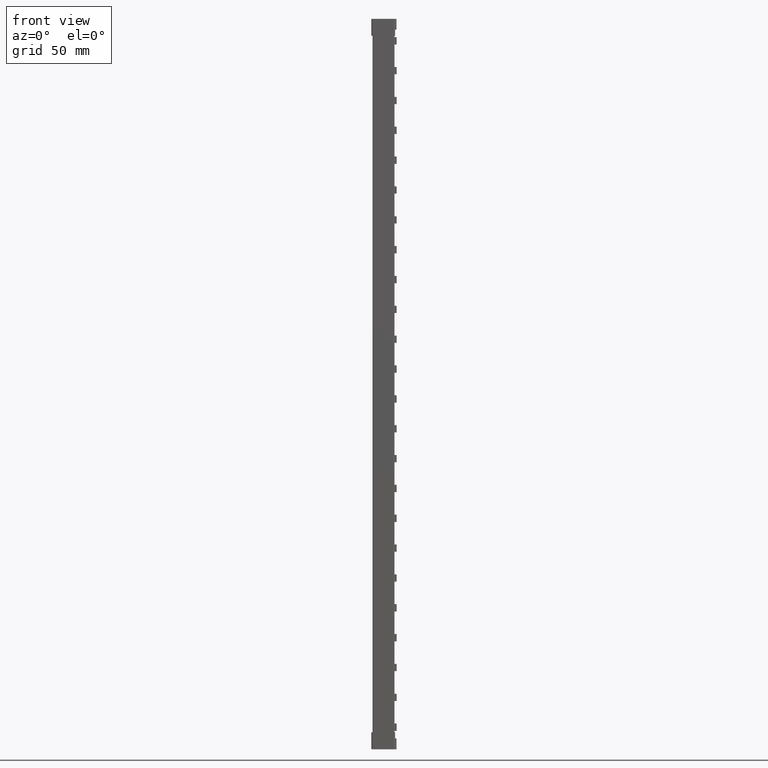
[diagram: clean part render]
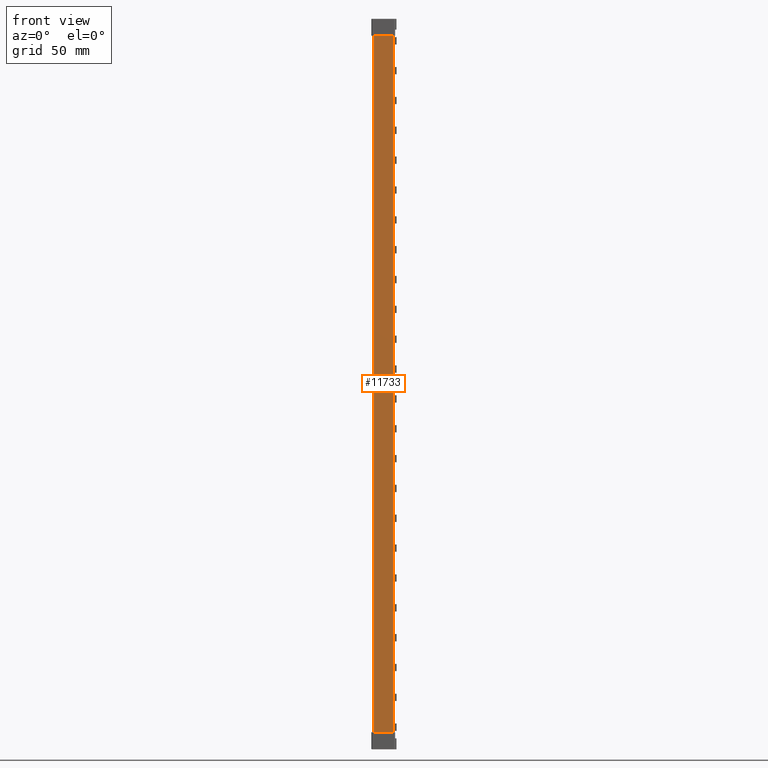
[diagram: same view with one face highlighted and labeled with its STEP entity id]
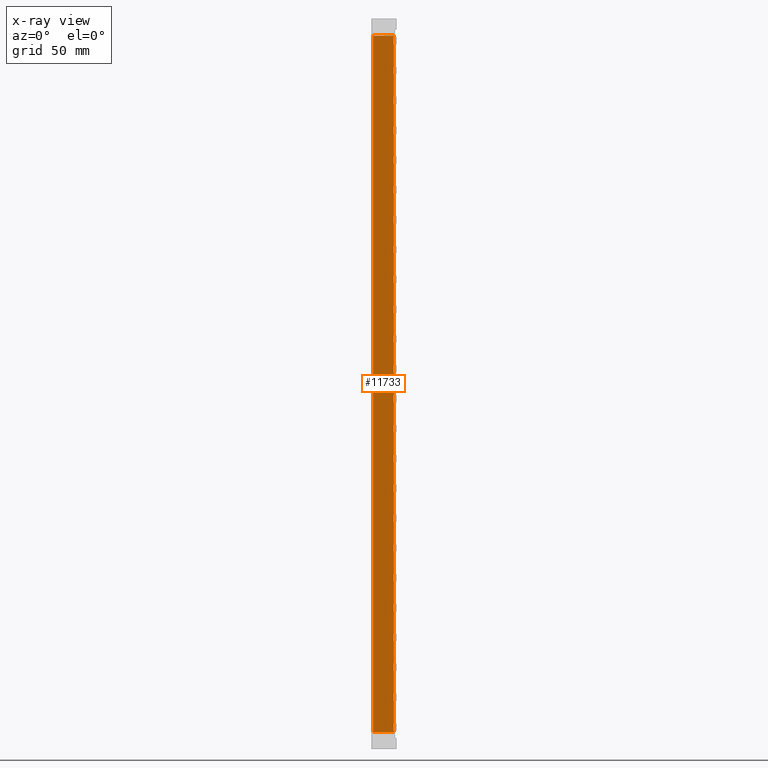
[diagram: x-ray of the same camera — body ghosted, the highlighted face saturated]
A machine part, front view. The second image highlights one B-rep face of the part: STEP entity #11733.
The next image is the same camera in x-ray: the body ghosted, the highlighted face saturated — about 0% of this face is hidden behind the body in this view.
In plain terms, the highlighted planar face has unit normal (-0, 1, 0).
Its self-contained STEP definition (entity closure, byte-faithful):
#1106 = CARTESIAN_POINT ( 'NONE',  ( 11.80192812978782700, 1.341396428036907800E-007, -200.9000000000002900 ) ) ;
#1111 = CARTESIAN_POINT ( 'NONE',  ( 11.80192812893712300, 1.341396426118437200E-007, 209.9000000000000100 ) ) ;
#1141 = CARTESIAN_POINT ( 'NONE',  ( 1.775923731161824000E-010, 5.640239996927491700E-014, 209.9000000000000100 ) ) ;
#1250 = CARTESIAN_POINT ( 'NONE',  ( 3.551845538125519700E-009, 5.558089477962050900E-014, -200.9000000000001500 ) ) ;
#11395 = EDGE_CURVE ( 'NONE', #30958, #30922, #14429, .T. ) ;
#11417 = EDGE_CURVE ( 'NONE', #30883, #30958, #14487, .T. ) ;
#11418 = EDGE_CURVE ( 'NONE', #30922, #30866, #14475, .T. ) ;
#11486 = EDGE_CURVE ( 'NONE', #30866, #30883, #14573, .T. ) ;
#11733 = ADVANCED_FACE ( 'NONE', ( #15071 ), #15076, .F. ) ;
#14407 = DIRECTION ( 'NONE',  ( 0.0000000000000000000, 0.0000000000000000000, 1.000000000000000000 ) ) ;
#14429 = LINE ( 'NONE', #14455, #29974 ) ;
#14455 = CARTESIAN_POINT ( 'NONE',  ( 1.420738259131353100E-009, 5.552729920643999400E-014, 219.0000000000000000 ) ) ;
#14471 = DIRECTION ( 'NONE',  ( -0.9999999999999998900, -1.136590436583420100E-008, 0.0000000000000000000 ) ) ;
#14472 = CARTESIAN_POINT ( 'NONE',  ( 0.0000000000000000000, 5.551115123125782700E-014, 209.9000000000000100 ) ) ;
#14473 = DIRECTION ( 'NONE',  ( 0.9999999999999998900, 1.136590436583420100E-008, -0.0000000000000000000 ) ) ;
#14475 = LINE ( 'NONE', #14472, #29968 ) ;
#14487 = LINE ( 'NONE', #14490, #29971 ) ;
#14490 = CARTESIAN_POINT ( 'NONE',  ( 0.0000000000000000000, 5.551115123125782700E-014, -200.9000000000004900 ) ) ;
#14573 = LINE ( 'NONE', #14586, #29993 ) ;
#14578 = DIRECTION ( 'NONE',  ( -0.0000000000000000000, -0.0000000000000000000, -1.000000000000000000 ) ) ;
#14586 = CARTESIAN_POINT ( 'NONE',  ( 11.80192812978782500, 1.341396419667681500E-007, 219.0000000000000000 ) ) ;
#15049 = CARTESIAN_POINT ( 'NONE',  ( 0.0000000000000000000, 5.551115123125782700E-014, 219.0000000000000000 ) ) ;
#15071 = FACE_OUTER_BOUND ( 'NONE', #32954, .T. ) ;
#15076 = PLANE ( 'NONE',  #30139 ) ;
#15077 = DIRECTION ( 'NONE',  ( -1.136590436583420300E-008, 1.000000000000000000, 0.0000000000000000000 ) ) ;
#15078 = DIRECTION ( 'NONE',  ( -0.9999999999999998900, -1.136590436583420100E-008, 0.0000000000000000000 ) ) ;
#18534 = ORIENTED_EDGE ( 'NONE', *, *, #11418, .F. ) ;
#18599 = ORIENTED_EDGE ( 'NONE', *, *, #11395, .F. ) ;
#18613 = ORIENTED_EDGE ( 'NONE', *, *, #11417, .F. ) ;
#18636 = ORIENTED_EDGE ( 'NONE', *, *, #11486, .F. ) ;
#29968 = VECTOR ( 'NONE', #14473, 1000.000000000000100 ) ;
#29971 = VECTOR ( 'NONE', #14471, 1000.000000000000100 ) ;
#29974 = VECTOR ( 'NONE', #14407, 1000.000000000000000 ) ;
#29993 = VECTOR ( 'NONE', #14578, 1000.000000000000000 ) ;
#30139 = AXIS2_PLACEMENT_3D ( 'NONE', #15049, #15077, #15078 ) ;
#30866 = VERTEX_POINT ( 'NONE', #1111 ) ;
#30883 = VERTEX_POINT ( 'NONE', #1106 ) ;
#30922 = VERTEX_POINT ( 'NONE', #1141 ) ;
#30958 = VERTEX_POINT ( 'NONE', #1250 ) ;
#32954 = EDGE_LOOP ( 'NONE', ( #18534, #18599, #18613, #18636 ) ) ;